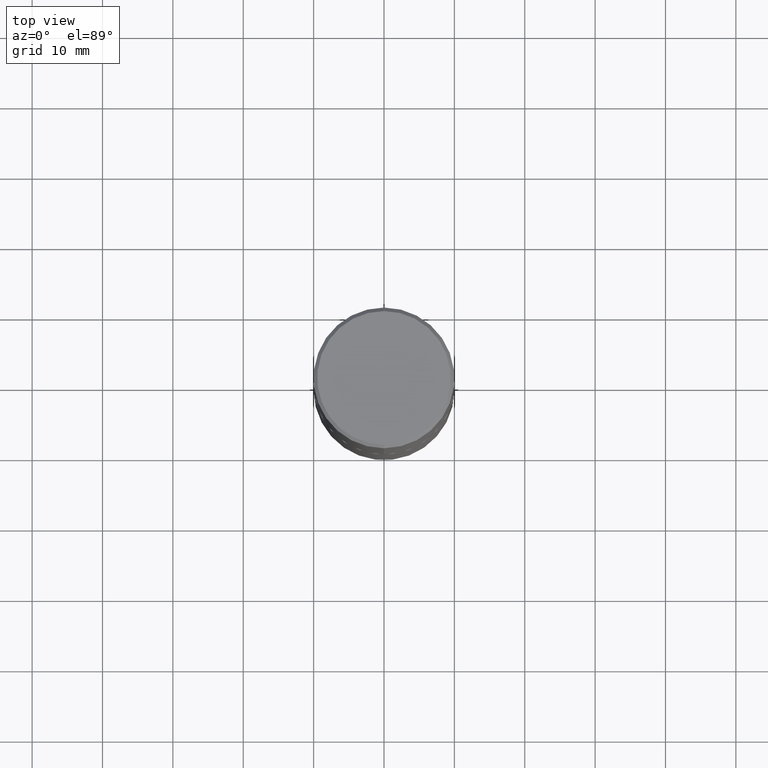
[diagram: clean part render]
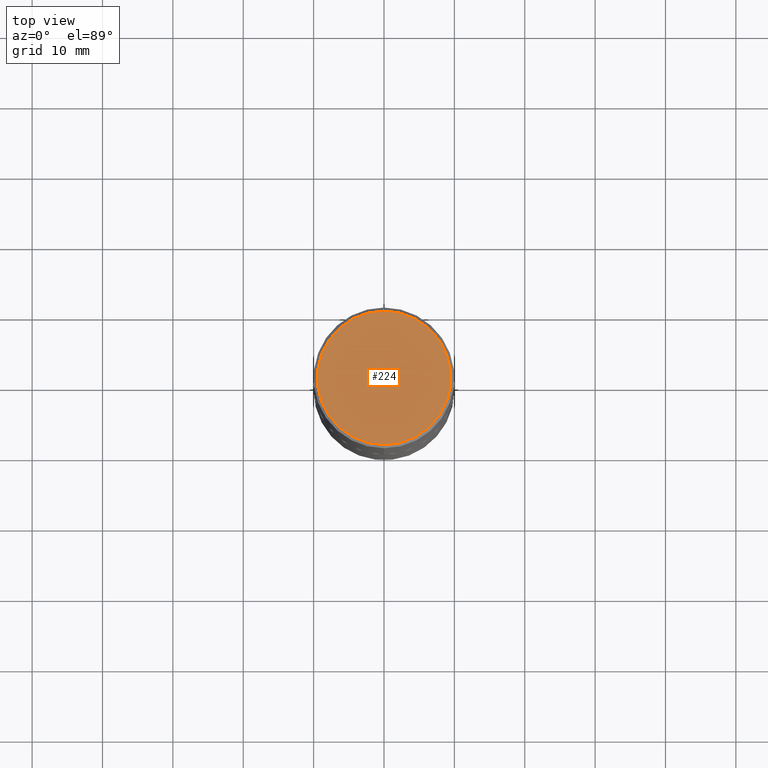
[diagram: same view with one face highlighted and labeled with its STEP entity id]
A machine part, top view. The second image highlights one B-rep face of the part: STEP entity #224.
In plain terms, the highlighted planar face has unit normal (0, -0, -1).
Its self-contained STEP definition (entity closure, byte-faithful):
#27 = PLANE ( 'NONE',  #319 ) ;
#29 = DIRECTION ( 'NONE',  ( -2.447902336346030930E-29, 3.487996385144809755E-15, 1.000000000000000000 ) ) ;
#32 = CARTESIAN_POINT ( 'NONE',  ( -5.506038201652776757E-45, 7.845509626213831500E-31, 2.249288347782537153E-16 ) ) ;
#53 = CIRCLE ( 'NONE', #366, 0.3736999999999999211 ) ;
#122 = EDGE_CURVE ( 'NONE', #258, #331, #53, .T. ) ;
#135 = CIRCLE ( 'NONE', #227, 0.3736999999999999211 ) ;
#154 = CARTESIAN_POINT ( 'NONE',  ( -5.506038201652776757E-45, 7.845509626213831500E-31, 2.249288347782537153E-16 ) ) ;
#195 = CARTESIAN_POINT ( 'NONE',  ( 2.679362779428220707E-15, 0.3736999999999999211, -1.078535414350361218E-15 ) ) ;
#214 = CARTESIAN_POINT ( 'NONE',  ( 2.609533152651356620E-15, 0.3736999999999999211, -1.190999831739488445E-15 ) ) ;
#224 = ADVANCED_FACE ( 'NONE', ( #249 ), #27, .F. ) ;
#227 = AXIS2_PLACEMENT_3D ( 'NONE', #154, #349, #316 ) ;
#231 = EDGE_CURVE ( 'NONE', #331, #258, #135, .T. ) ;
#236 = ORIENTED_EDGE ( 'NONE', *, *, #122, .T. ) ;
#249 = FACE_OUTER_BOUND ( 'NONE', #416, .T. ) ;
#256 = DIRECTION ( 'NONE',  ( -6.982962677686265133E-15, -1.000000000000000000, 3.487996385144809755E-15 ) ) ;
#258 = VERTEX_POINT ( 'NONE', #318 ) ;
#316 = DIRECTION ( 'NONE',  ( -6.982962677686265133E-15, -1.000000000000000000, 3.487996385144809755E-15 ) ) ;
#318 = CARTESIAN_POINT ( 'NONE',  ( -2.632373081744936315E-15, -0.3736999999999999211, 1.528393083906868747E-15 ) ) ;
#319 = AXIS2_PLACEMENT_3D ( 'NONE', #214, #381, #403 ) ;
#331 = VERTEX_POINT ( 'NONE', #195 ) ;
#335 = ORIENTED_EDGE ( 'NONE', *, *, #231, .T. ) ;
#349 = DIRECTION ( 'NONE',  ( -2.447902336346030930E-29, 3.487996385144809755E-15, 1.000000000000000000 ) ) ;
#366 = AXIS2_PLACEMENT_3D ( 'NONE', #32, #29, #256 ) ;
#381 = DIRECTION ( 'NONE',  ( 2.447902336346030930E-29, -3.487996385144809360E-15, -1.000000000000000000 ) ) ;
#403 = DIRECTION ( 'NONE',  ( 6.982962677686265922E-15, 1.000000000000000000, -3.487996385144809360E-15 ) ) ;
#416 = EDGE_LOOP ( 'NONE', ( #335, #236 ) ) ;